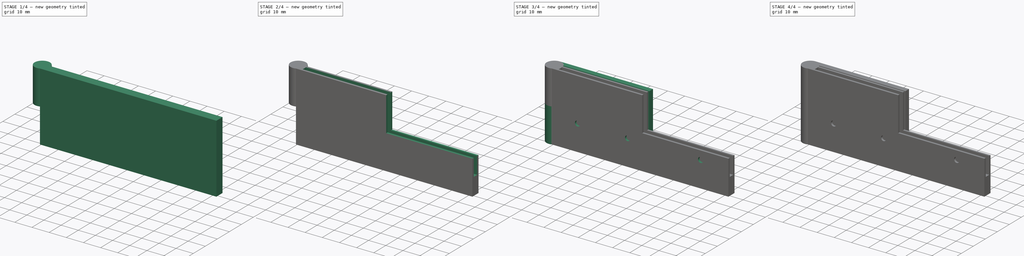
[diagram: build sequence overview — one tinted view per stage of 4, left to right]
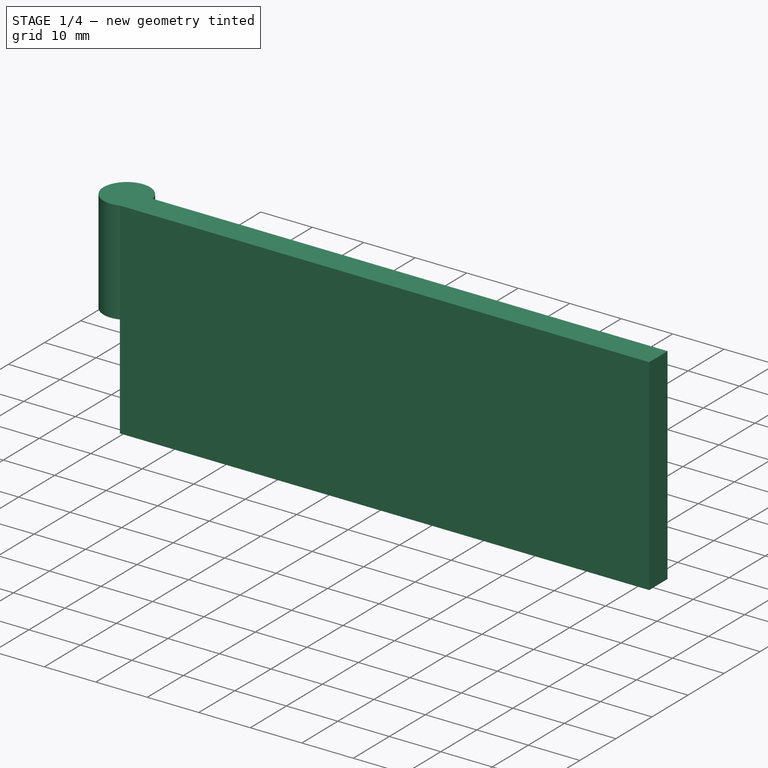
[diagram: stage 1 of 4 — iso view after this stage's code; geometry added in this stage tinted green]
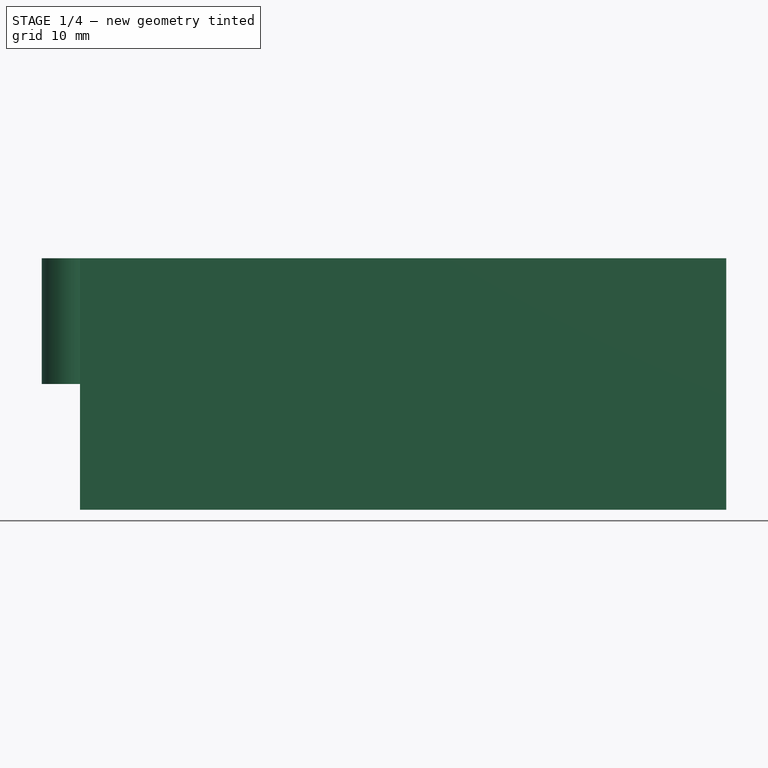
[diagram: stage 1 of 4 — front view after this stage's code; geometry added in this stage tinted green]
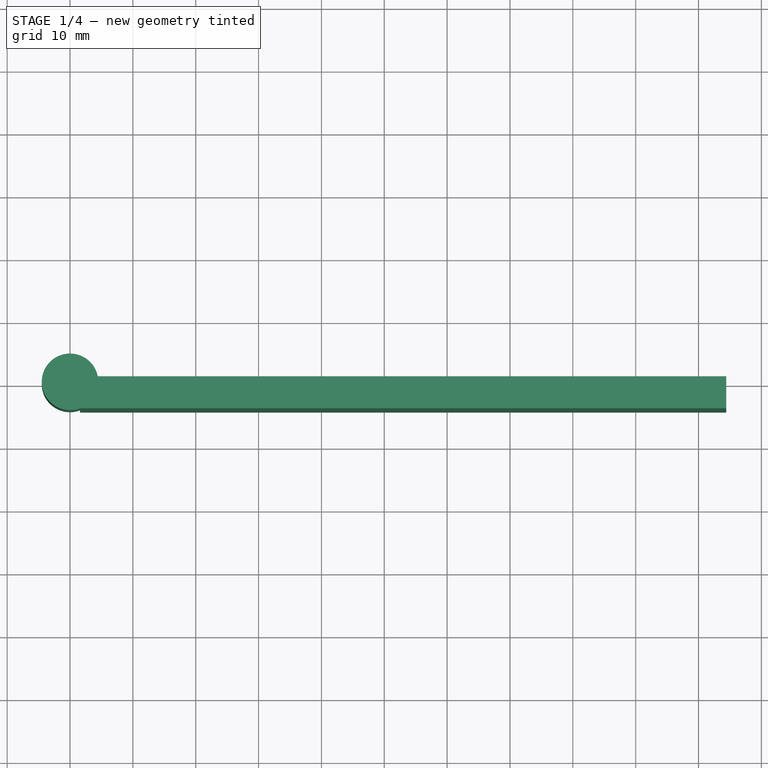
[diagram: stage 1 of 4 — top view after this stage's code; geometry added in this stage tinted green]
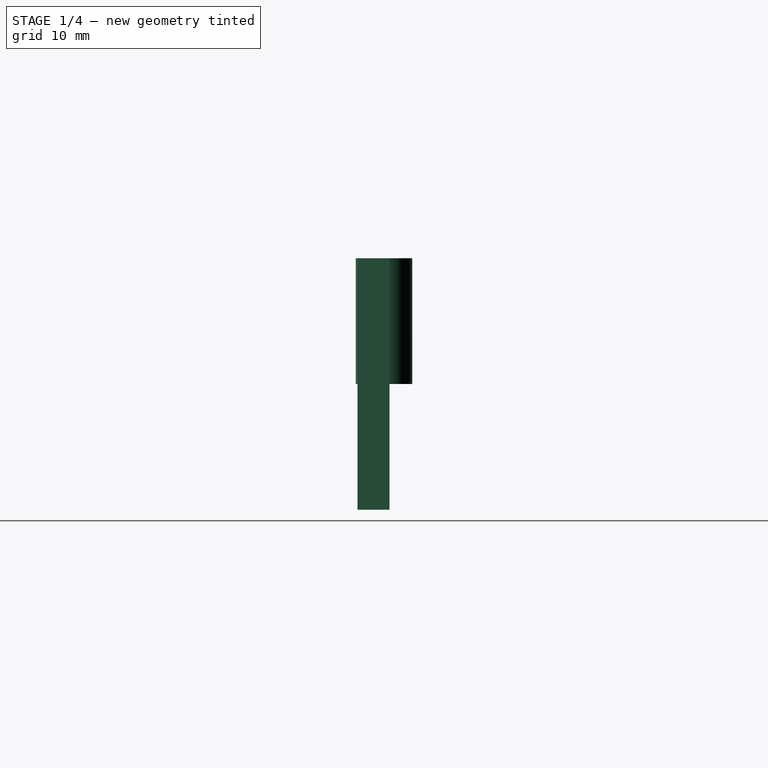
[diagram: stage 1 of 4 — right view after this stage's code; geometry added in this stage tinted green]
FCSTD DOCUMENT  (FreeCAD 0.16R6705 (Git))
Label: cerniera_fissa
License: All rights reserved
LicenseURL: http://it.wikipedia.org/wiki/<copyright redacted>
objects: Sketcher::SketchObject×8, PartDesign::Pocket×6, PartDesign::Pad×2, Part::Cut×1, PartDesign::Chamfer×1
note: 26 computed .brp shape members not serialized (recipe doc carries the construction recipe); baked Part::Feature solids carry a one-line shape summary decoded from their .brp

FEATURE [Sketcher::SketchObject] Sketch001
  sketch-geometry (4):
    g0: ArcOfCircle CenterX=0 CenterY=0 CenterZ=0 NormalX=0 NormalY=0 NormalZ=1 Radius=4.5 StartAngle=0.197385 EndAngle=5.07412
    g1: LineSegment StartX=4.41262 StartY=0.882474 StartZ=0 EndX=104.413 EndY=0.882474 EndZ=0
    g2: LineSegment StartX=104.413 StartY=0.882474 StartZ=0 EndX=104.413 EndY=-4.20879 EndZ=0
    g3: LineSegment StartX=104.413 StartY=-4.20879 StartZ=0 EndX=1.59251 EndY=-4.20879 EndZ=0
  constraints (12):
    c: Radius(g0) = 4.5
    c: Coincident(g1,g2)
    c: Coincident(g2,g3)
    c: Horizontal(g1)
    c: Horizontal(g3)
    c: Vertical(g2)
    c: PointOnObject(g0,g1)
    c: PointOnObject(g0,g3)
    c: DistanceX(g1,g1) = 100
    c: Coincident(g0,g1)
    c: Coincident(g-1,g0)
    c: Coincident(g0,g3)
FEATURE [PartDesign::Pad] Pad001
  Length = 40
  Length2 = 100
  Reversed = true
  Sketch = -> Sketch001
  Type = 0
FEATURE [Sketcher::SketchObject] Sketch002
  ExternalGeometry = -> [Pad001]
  Placement = pos=(0,0,-40) rot=(1,0,0;3.14159rad)
  Support = -> Pad001 [Face6]
  sketch-geometry (1):
    g0: Circle CenterX=0 CenterY=0 CenterZ=0 NormalX=0 NormalY=0 NormalZ=1 Radius=4.5
  constraints (1):
    c: Radius(g0) = 4.5
FEATURE [PartDesign::Pocket] Pocket
  Length = 20
  Sketch = -> Sketch002
  Type = 0
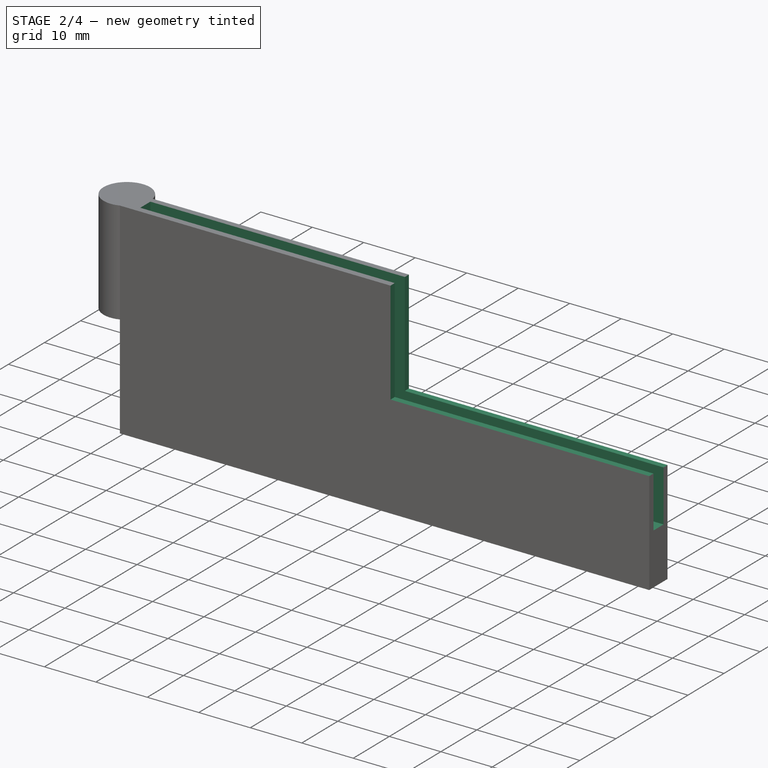
[diagram: stage 2 of 4 — iso view after this stage's code; geometry added in this stage tinted green]
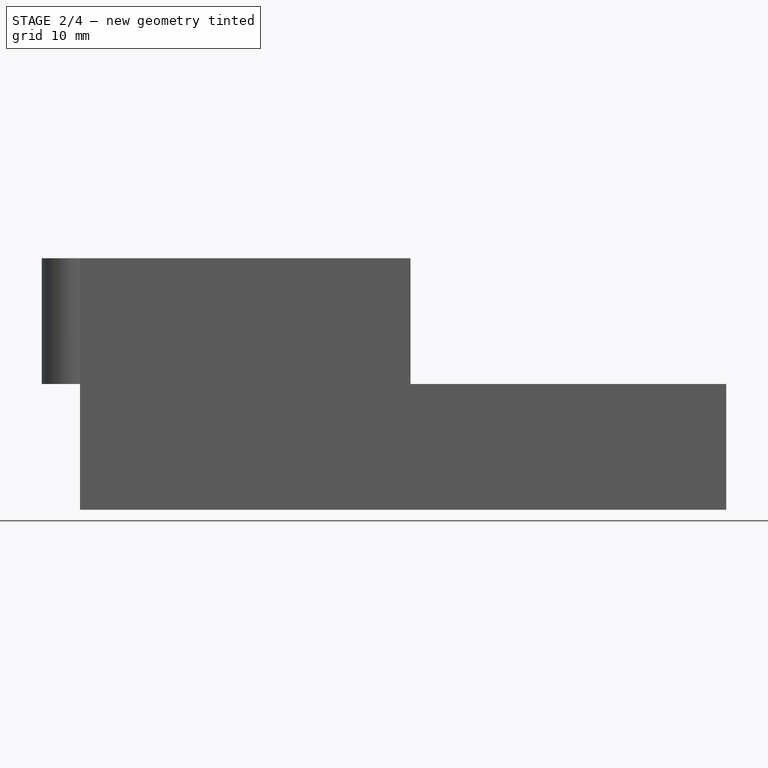
[diagram: stage 2 of 4 — front view after this stage's code; geometry added in this stage tinted green]
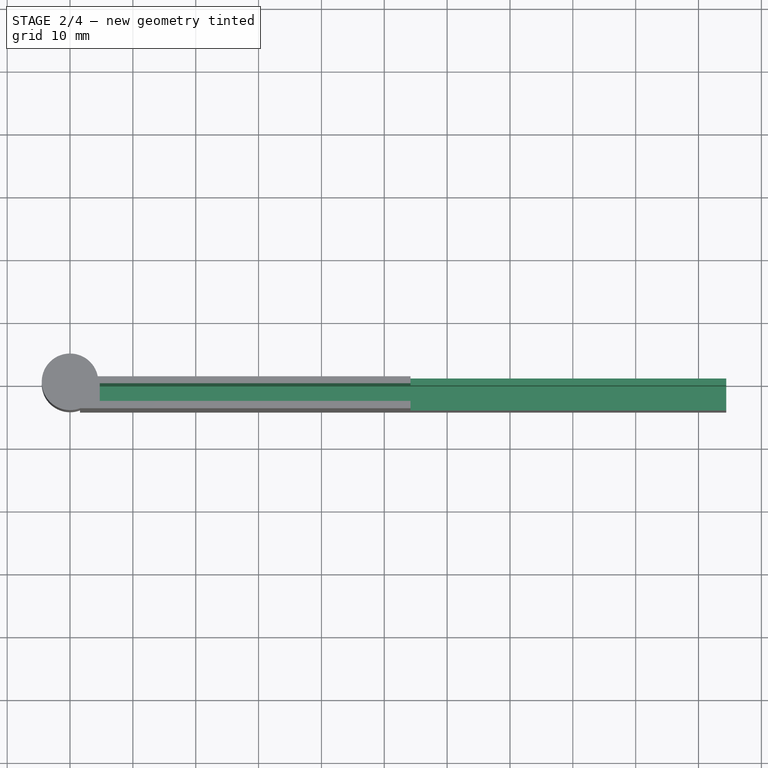
[diagram: stage 2 of 4 — top view after this stage's code; geometry added in this stage tinted green]
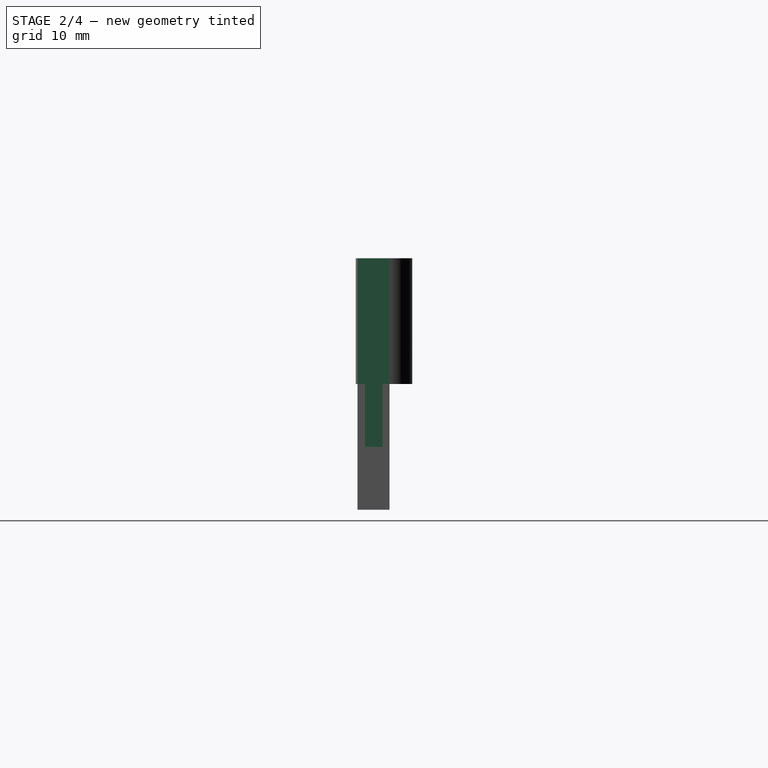
[diagram: stage 2 of 4 — right view after this stage's code; geometry added in this stage tinted green]
FEATURE [Sketcher::SketchObject] Sketch003
  ExternalGeometry = -> [Pocket]
  Placement = pos=(0,0,-20) rot=(1,0,0;3.14159rad)
  Support = -> Pocket [Face4]
  sketch-geometry (1):
    g0: Circle CenterX=0 CenterY=0 CenterZ=0 NormalX=0 NormalY=0 NormalZ=1 Radius=2.50741
FEATURE [PartDesign::Pocket] Pocket001
  Length = 15
  Sketch = -> Sketch003
  Type = 0
FEATURE [Sketcher::SketchObject] Sketch004
  ExternalGeometry = -> [Pocket001]
  Support = -> Pocket001 [Face2]
  sketch-geometry (4):
    g0: LineSegment StartX=54.1645 StartY=0.882474 StartZ=0 EndX=104.413 EndY=0.882474 EndZ=0
    g1: LineSegment StartX=104.413 StartY=0.882474 StartZ=0 EndX=104.413 EndY=-4.20879 EndZ=0
    g2: LineSegment StartX=104.413 StartY=-4.20879 StartZ=0 EndX=54.1645 EndY=-4.20879 EndZ=0
    g3: LineSegment StartX=54.1645 StartY=-4.20879 StartZ=0 EndX=54.1645 EndY=0.882474 EndZ=0
  constraints (10):
    c: Coincident(g0,g1)
    c: Coincident(g1,g2)
    c: Coincident(g2,g3)
    c: Coincident(g3,g0)
    c: Horizontal(g0)
    c: Horizontal(g2)
    c: Vertical(g1)
    c: Vertical(g3)
    c: Coincident(g-5,g1)
    c: Coincident(g-5,g0)
FEATURE [PartDesign::Pocket] Pocket002
  Length = 20
  Sketch = -> Sketch004
  Type = 0
FEATURE [Sketcher::SketchObject] Sketch005
  ExternalGeometry = -> [Pocket002]
  Support = -> Pocket002 [Face2]
  sketch-geometry (4):
    g0: LineSegment StartX=4.72831 StartY=-0.227362 StartZ=0 EndX=104.413 EndY=-0.227362 EndZ=0
    g1: LineSegment StartX=104.413 StartY=-0.227362 StartZ=0 EndX=104.413 EndY=-3.02736 EndZ=0
    g2: LineSegment StartX=104.413 StartY=-3.02736 StartZ=0 EndX=4.72831 EndY=-3.02736 EndZ=0
    g3: LineSegment StartX=4.72831 StartY=-3.02736 StartZ=0 EndX=4.72831 EndY=-0.227362 EndZ=0
  constraints (10):
    c: Coincident(g0,g1)
    c: Coincident(g1,g2)
    c: Coincident(g2,g3)
    c: Coincident(g3,g0)
    c: Horizontal(g0)
    c: Horizontal(g2)
    c: Vertical(g1)
    c: Vertical(g3)
    c: DistanceY(g1,g0) = 2.8
    c: PointOnObject(g1,g-3)
FEATURE [PartDesign::Pocket] Pocket003  label="cerniera_mobile"
  Length = 30
  Sketch = -> Sketch005
  Type = 0
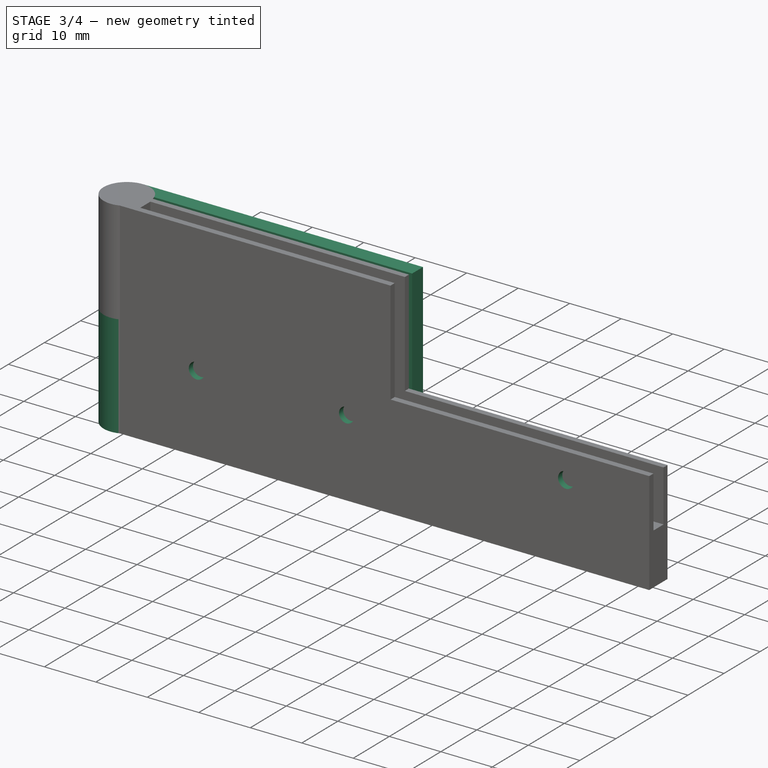
[diagram: stage 3 of 4 — iso view after this stage's code; geometry added in this stage tinted green]
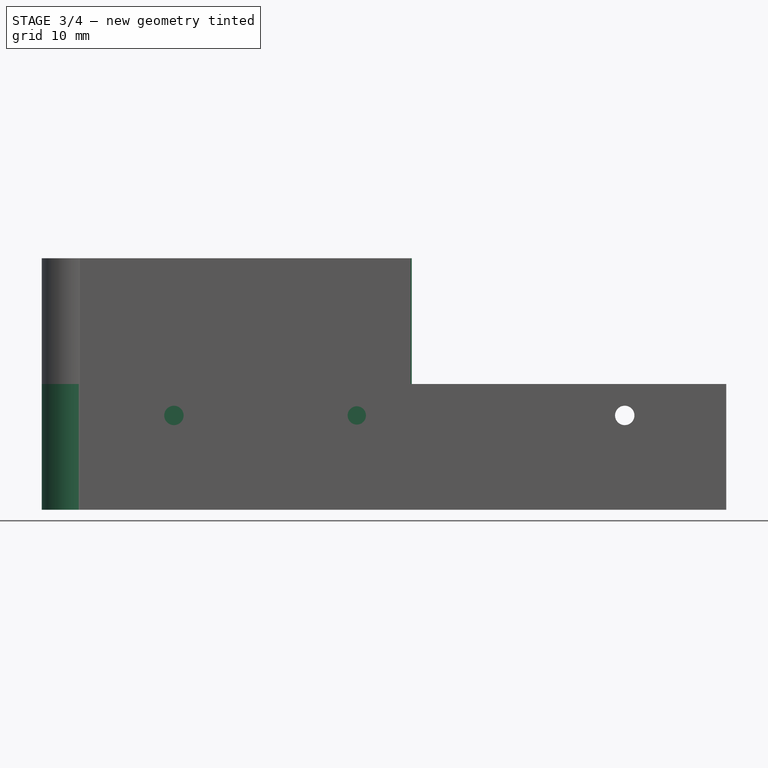
[diagram: stage 3 of 4 — front view after this stage's code; geometry added in this stage tinted green]
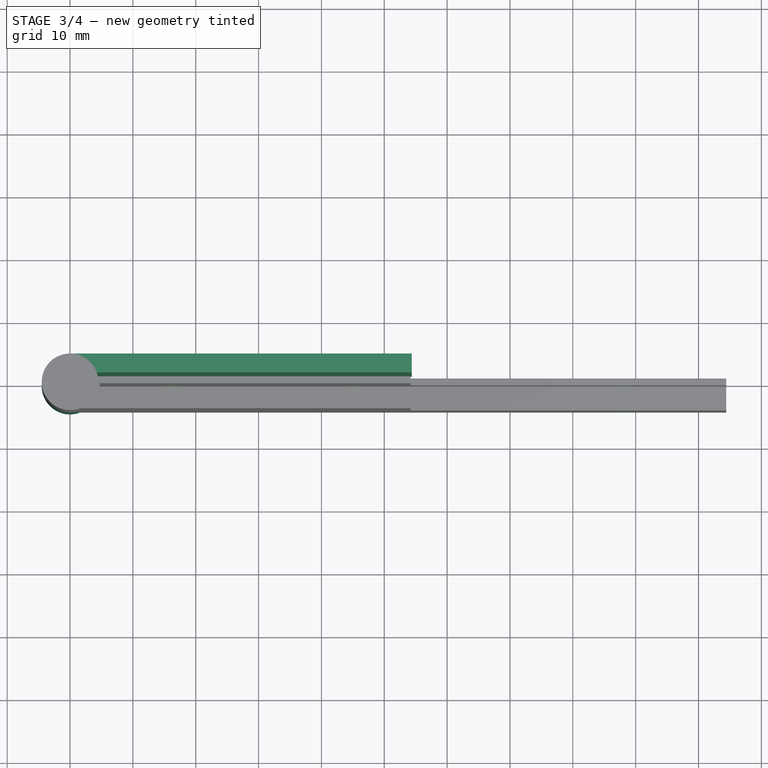
[diagram: stage 3 of 4 — top view after this stage's code; geometry added in this stage tinted green]
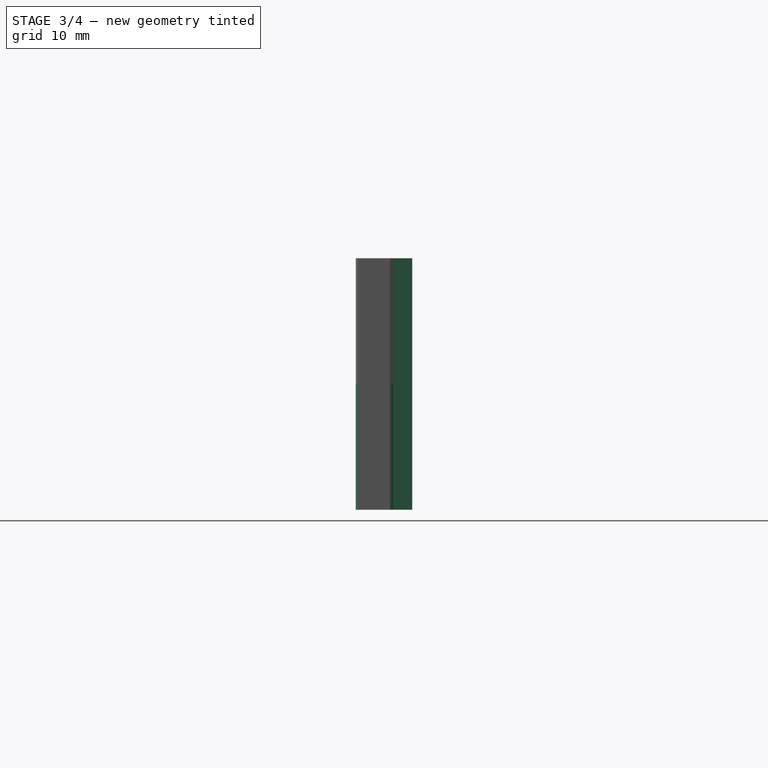
[diagram: stage 3 of 4 — right view after this stage's code; geometry added in this stage tinted green]
FEATURE [Sketcher::SketchObject] Sketch
  sketch-geometry (4):
    g0: ArcOfCircle CenterX=0 CenterY=0 CenterZ=0 NormalX=0 NormalY=0 NormalZ=1 Radius=4.5 StartAngle=1.59092 EndAngle=6.62281
    g1: LineSegment StartX=-0.0905348 StartY=4.49909 StartZ=0 EndX=54.3701 EndY=4.49909 EndZ=0
    g2: LineSegment StartX=54.3701 StartY=4.49909 StartZ=0 EndX=54.3701 EndY=1.49909 EndZ=0
    g3: LineSegment StartX=54.3701 StartY=1.49909 StartZ=0 EndX=4.24296 EndY=1.49909 EndZ=0
  constraints (10):
    c: Coincident(g1,g2)
    c: Coincident(g2,g3)
    c: Horizontal(g1)
    c: Horizontal(g3)
    c: Vertical(g2)
    c: Coincident(g-1,g0)
    c: DistanceY(g2,g1) = 3
    c: Coincident(g0,g1)
    c: Coincident(g0,g3)
    c: Radius(g0) = 4.5
FEATURE [PartDesign::Pad] Pad
  Length = 40
  Length2 = 100
  Reversed = true
  Sketch = -> Sketch
  Type = 0
FEATURE [Part::Cut] Cut  label="cerniera_fissa"
  Base = -> Pad
  Tool = -> Pocket003
FEATURE [Sketcher::SketchObject] Sketch007
  ExternalGeometry = -> [Pocket003]
  Placement = pos=(0,-4.20879,0) rot=(1,0,0;1.5708rad)
  Support = -> Pocket003 [Face3]
  sketch-geometry (4):
    g0: LineSegment [constr] StartX=10.9815 StartY=-25 StartZ=0 EndX=99.221 EndY=-25 EndZ=0
    g1: Circle CenterX=88.2587 CenterY=-25 CenterZ=0 NormalX=0 NormalY=0 NormalZ=1 Radius=1.54307
    g2: Circle CenterX=16.5303 CenterY=-25 CenterZ=0 NormalX=0 NormalY=0 NormalZ=1 Radius=1.54307
    g3: Circle CenterX=45.6277 CenterY=-25 CenterZ=0 NormalX=0 NormalY=0 NormalZ=1 Radius=1.45762
  constraints (5):
    c: Horizontal(g0)
    c: DistanceY(g0,g-3) = 5
    c: PointOnObject(g2,g0)
    c: PointOnObject(g1,g0)
    c: PointOnObject(g3,g0)
FEATURE [PartDesign::Pocket] Pocket005
  Length = 5
  Sketch = -> Sketch007
  Type = 1
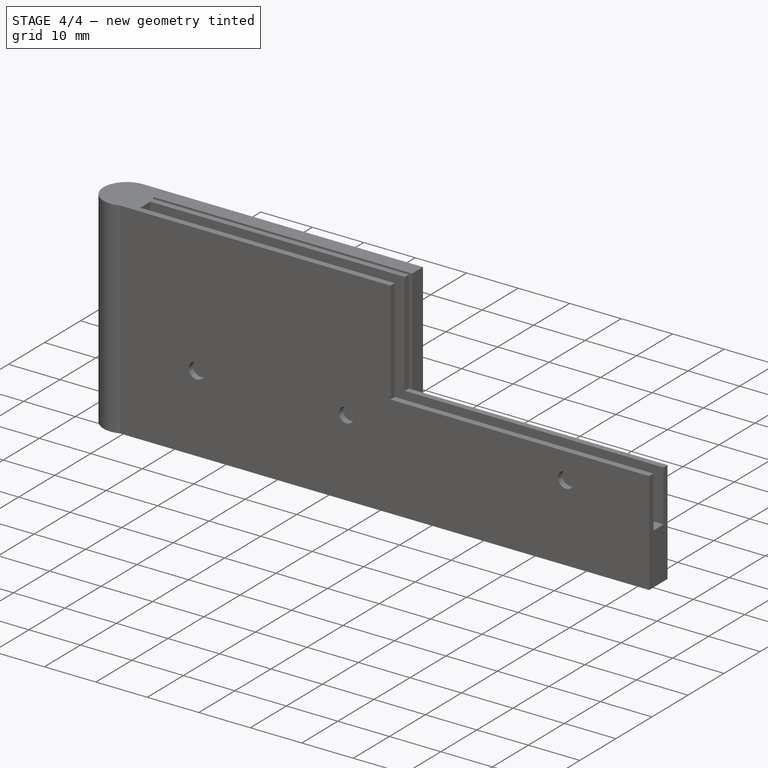
[diagram: stage 4 of 4 — iso view after this stage's code; geometry added in this stage tinted green]
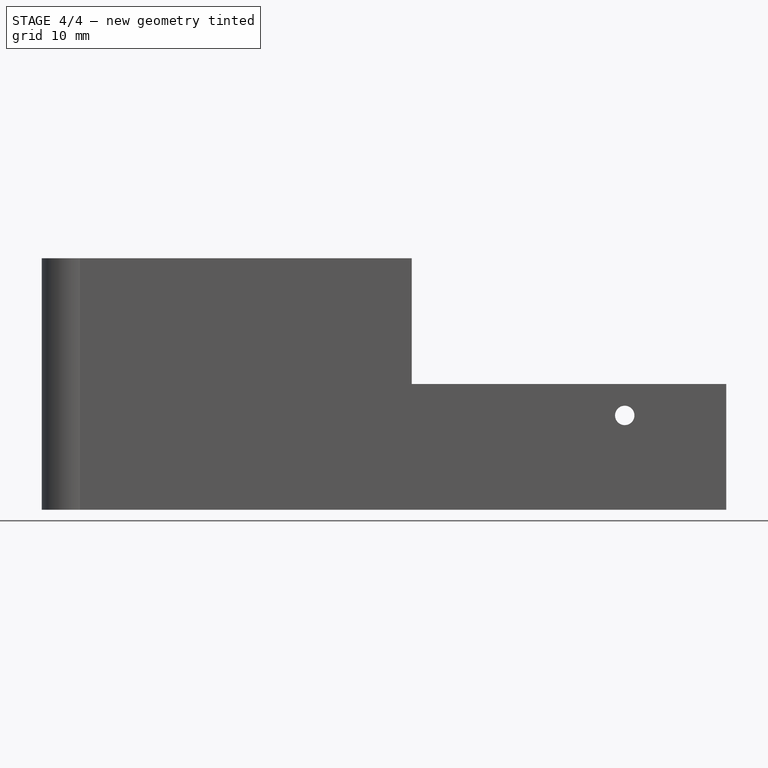
[diagram: stage 4 of 4 — front view after this stage's code; geometry added in this stage tinted green]
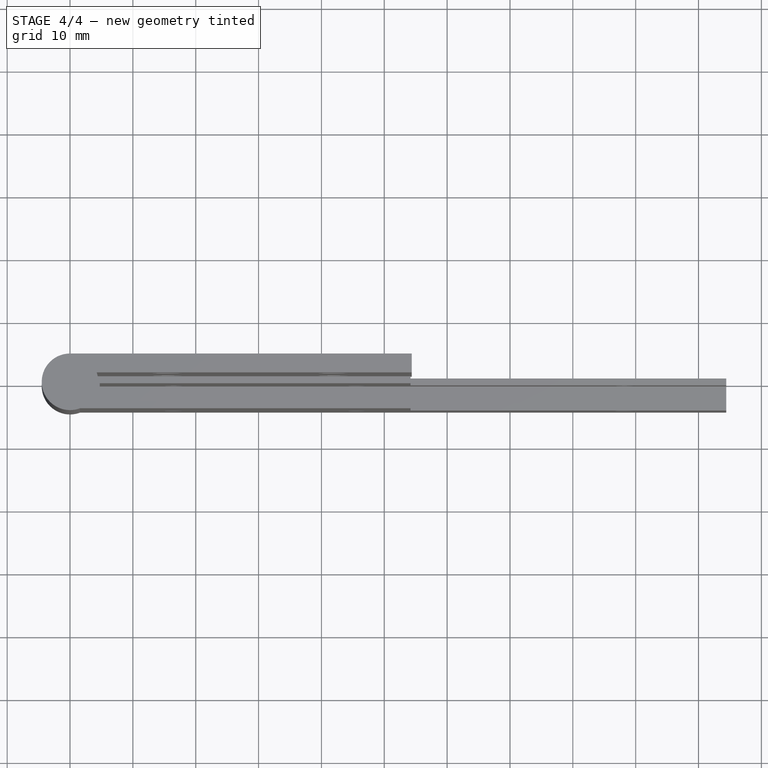
[diagram: stage 4 of 4 — top view after this stage's code; geometry added in this stage tinted green]
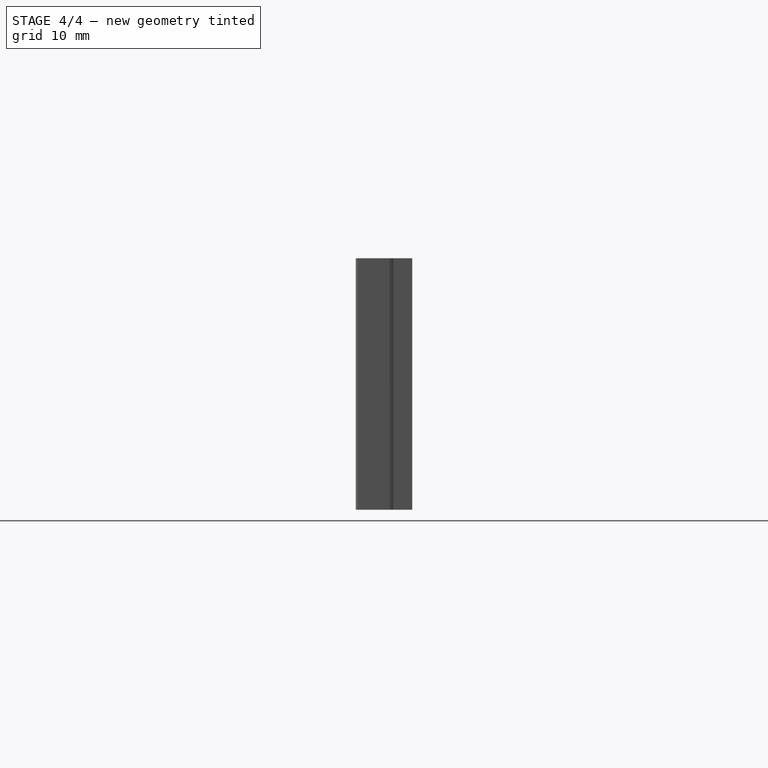
[diagram: stage 4 of 4 — right view after this stage's code; geometry added in this stage tinted green]
FEATURE [Sketcher::SketchObject] Sketch006
  Placement = pos=(0,1.49909,0) rot=(1,0,0;1.5708rad)
  Support = -> Cut [Face11]
  sketch-geometry (6):
    g0: Circle CenterX=15.5573 CenterY=-7.97207 CenterZ=0 NormalX=0 NormalY=0 NormalZ=1 Radius=1.48659
    g1: Circle CenterX=41.944 CenterY=-7.97207 CenterZ=0 NormalX=0 NormalY=0 NormalZ=1 Radius=1.4574
    g2: LineSegment [constr] StartX=15.5573 StartY=-7.97207 StartZ=0 EndX=41.944 EndY=-7.97207 EndZ=0
    g3: LineSegment [constr] StartX=15.5573 StartY=-30.1329 StartZ=0 EndX=41.944 EndY=-30.1329 EndZ=0
    g4: Circle CenterX=15.5573 CenterY=-30.1329 CenterZ=0 NormalX=0 NormalY=0 NormalZ=1 Radius=1.49072
    g5: Circle CenterX=41.944 CenterY=-30.1329 CenterZ=0 NormalX=0 NormalY=0 NormalZ=1 Radius=1.49072
  constraints (8):
    c: Horizontal(g2)
    c: Coincident(g2,g1)
    c: Coincident(g2,g0)
    c: Horizontal(g3)
    c: DistanceX(g3,g0) = 0
    c: Equal(g2,g3)
    c: Coincident(g3,g4)
    c: Coincident(g3,g5)
FEATURE [PartDesign::Pocket] Pocket004  label="cerniera_fissa_buchi"
  Length = 5
  Sketch = -> Sketch006
  Type = 1
FEATURE [PartDesign::Chamfer] Chamfer  label="cerniera_fissa_buchi_svasati"
  Base = -> Pocket004 [Edge36,Edge35,Edge34,Edge37]
  Size = 1
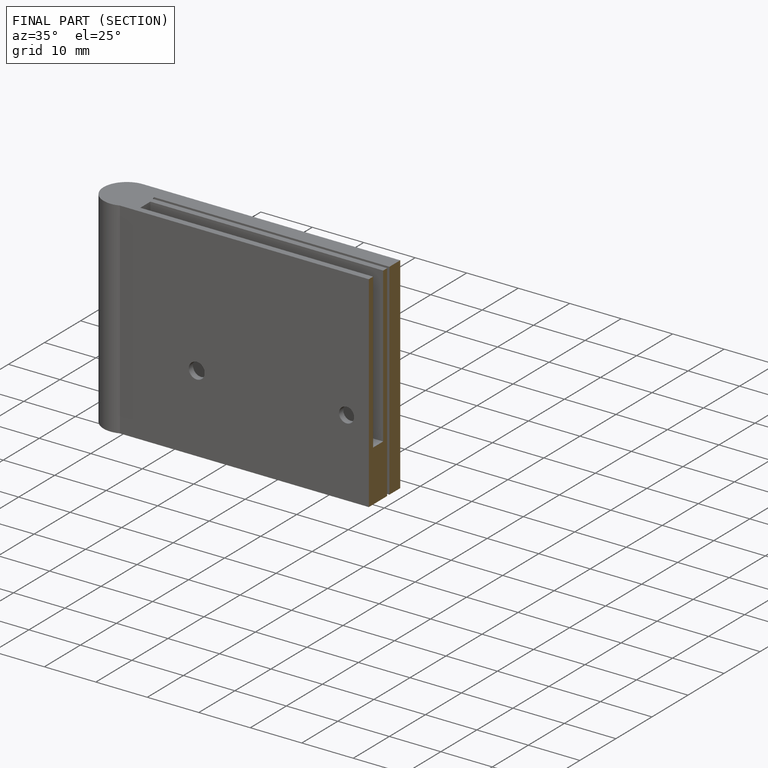
[diagram: finished part — half-section view (interior)]
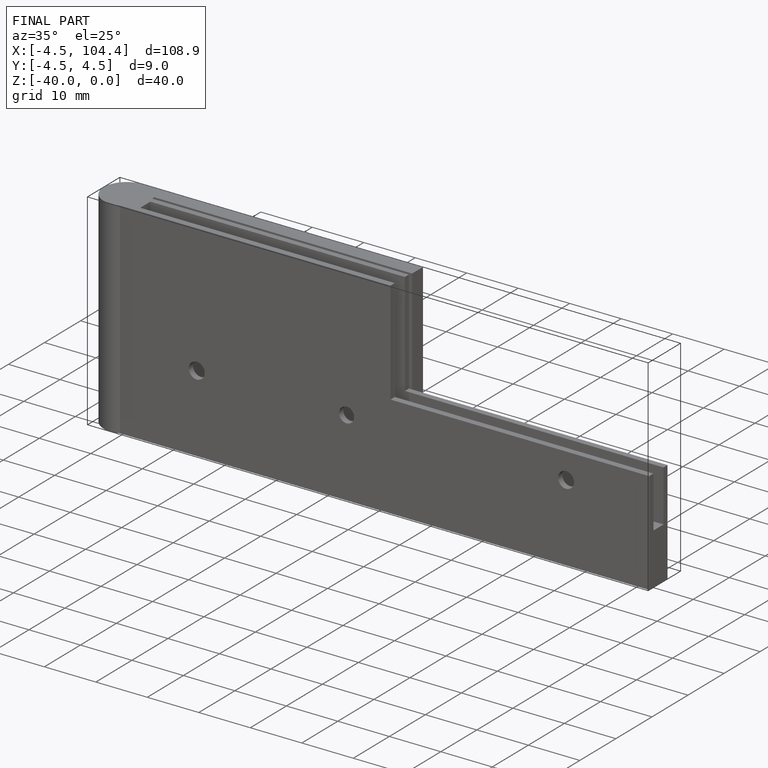
[diagram: finished part — iso view with bounding-box wireframe]
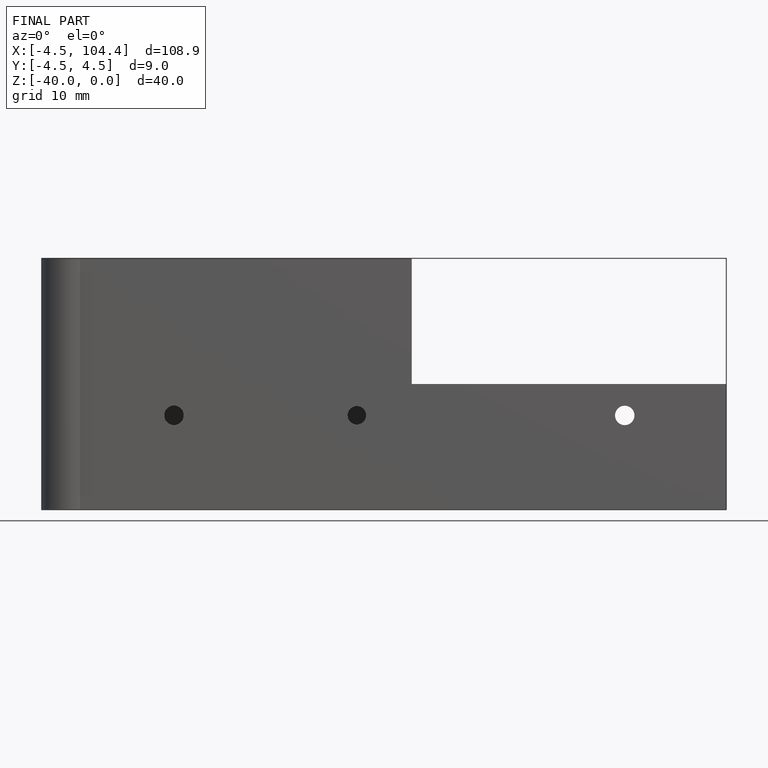
[diagram: finished part — front view with bounding-box wireframe]
